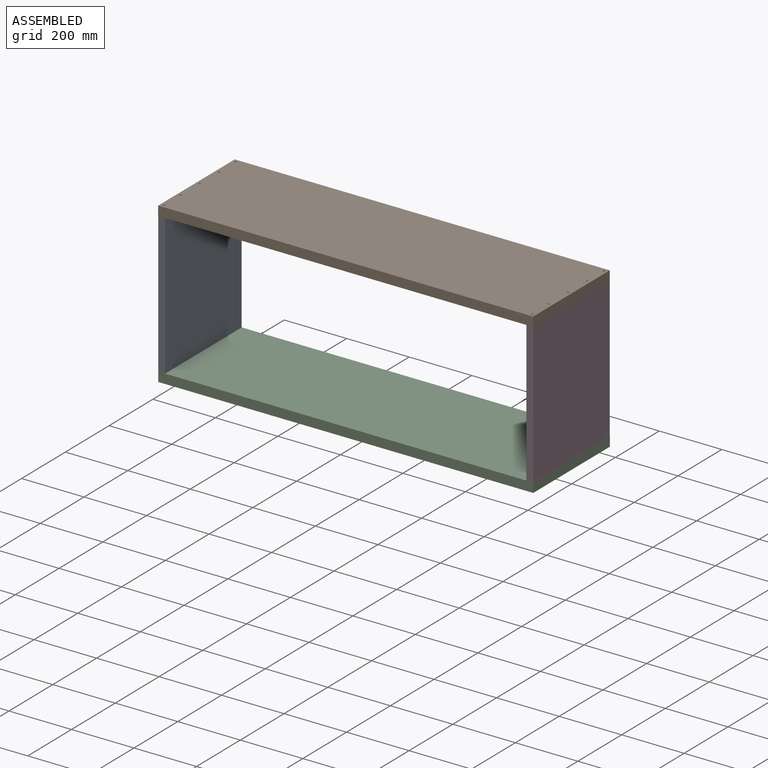
[diagram: assembled view]
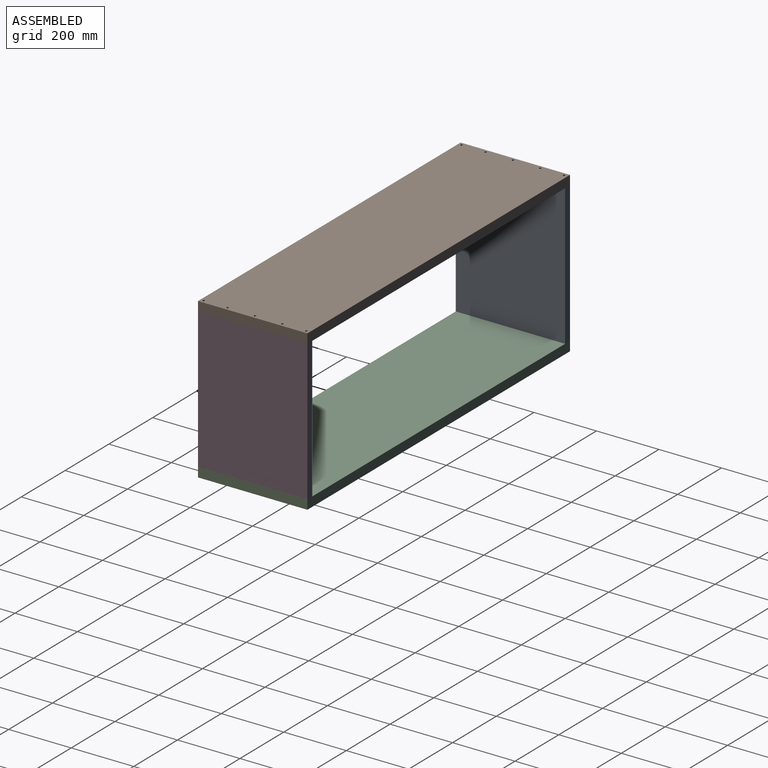
[diagram: assembled view, second angle]
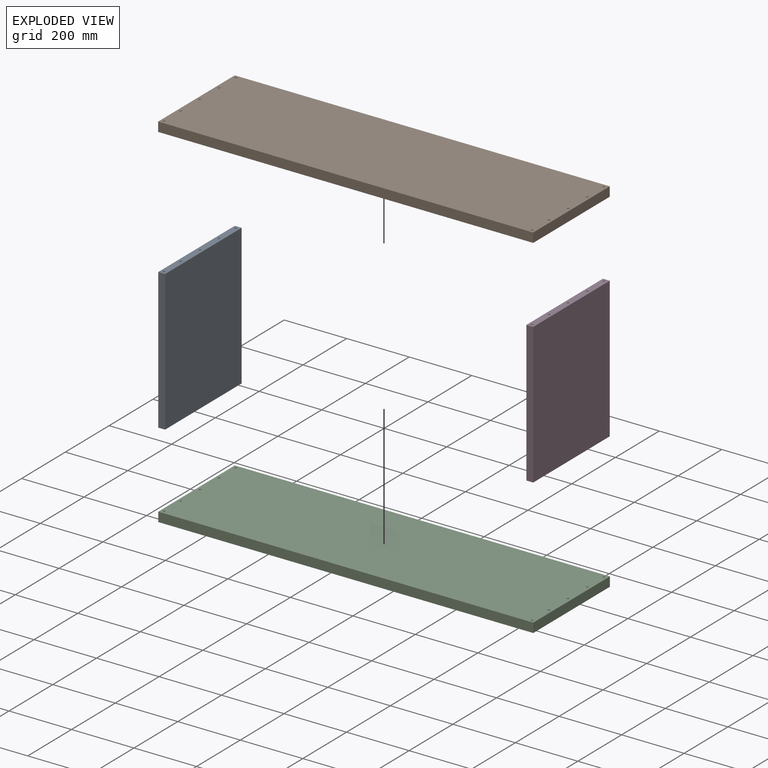
[diagram: exploded view]
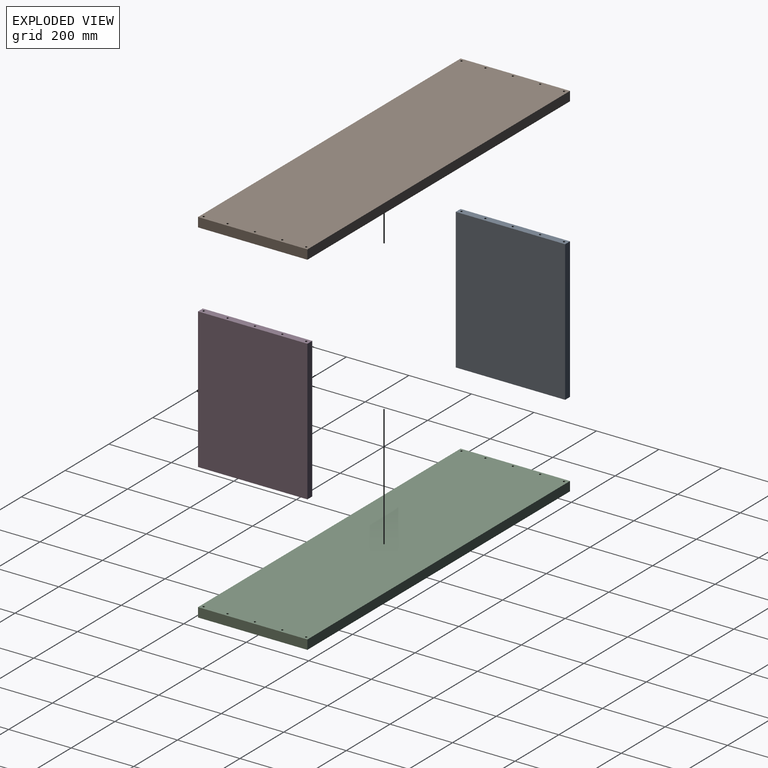
[diagram: exploded view, second angle]
ASSEMBLY  parts=4 mates=3
PART A: 26 faces, bbox 350x450x22 mm
  f0: plane 450x22mm, normal (-1,0,0), area 9900mm2, adj f1,f3,f4,f5
  f1: plane 450x350mm, normal (0,0,-1), area 157500mm2, adj f0,f2,f4,f5
  f2: plane 450x22mm, normal (1,0,0), area 9900mm2, adj f1,f3,f4,f5
  f3: plane 450x350mm, normal (0,0,1), area 157500mm2, adj f0,f2,f4,f5
  f4: plane 350x22mm, normal (0,-1,0), area 7507.6mm2, adj f0,f1,f2,f3,f16,f18,f20,f22
  f5: plane 350x22mm, normal (0,1,0), area 7507.6mm2, adj f0,f1,f2,f3,f6,f8,f10,f12
  f6: cylinder r=3.5mm len=30mm, axis (0,1,0), area 659.7mm2, adj f5,f7
  f7: cone r=0mm half-angle=59deg, axis (0,1,0), area 44.9mm2, adj f6
  f8: cylinder r=3.5mm len=30mm, axis (0,1,0), area 659.7mm2, adj f5,f9
  f9: cone r=0mm half-angle=59deg, axis (0,1,0), area 44.9mm2, adj f8
  f10: cylinder r=3.5mm len=30mm, axis (0,1,0), area 659.7mm2, adj f5,f11
  f11: cone r=0mm half-angle=59deg, axis (0,1,0), area 44.9mm2, adj f10
  f12: cylinder r=3.5mm len=30mm, axis (0,1,0), area 659.7mm2, adj f5,f13
  f13: cone r=0mm half-angle=59deg, axis (0,1,0), area 44.9mm2, adj f12
  f14: cylinder r=3.5mm len=30mm, axis (0,1,0), area 659.7mm2, adj f5,f15
  f15: cone r=0mm half-angle=59deg, axis (0,1,0), area 44.9mm2, adj f14
  f16: cylinder r=3.5mm len=30mm, axis (0,-1,0), area 659.7mm2, adj f4,f17
  f17: cone r=0mm half-angle=59deg, axis (0,-1,0), area 44.9mm2, adj f16
  f18: cylinder r=3.5mm len=30mm, axis (0,-1,0), area 659.7mm2, adj f4,f19
  f19: cone r=0mm half-angle=59deg, axis (0,-1,0), area 44.9mm2, adj f18
  f20: cylinder r=3.5mm len=30mm, axis (0,-1,0), area 659.7mm2, adj f4,f21
  f21: cone r=0mm half-angle=59deg, axis (0,-1,0), area 44.9mm2, adj f20
  f22: cylinder r=3.5mm len=30mm, axis (0,-1,0), area 659.7mm2, adj f4,f23
  f23: cone r=0mm half-angle=59deg, axis (0,-1,0), area 44.9mm2, adj f22
  f24: cylinder r=3.5mm len=30mm, axis (0,-1,0), area 659.7mm2, adj f4,f25
  f25: cone r=0mm half-angle=59deg, axis (0,-1,0), area 44.9mm2, adj f24
PART B: 16 faces, bbox 1200x350x30 mm
  f0: plane 350x30mm, normal (-1,0,0), area 10500mm2, adj f1,f3,f4,f5
  f1: plane 1200x350mm, normal (0,0,-1), area 419615.2mm2, adj f0,f2,f4,f5,f6,f7,f8,f9
  f2: plane 350x30mm, normal (1,0,0), area 10500mm2, adj f1,f3,f4,f5
  f3: plane 1200x350mm, normal (0,0,1), area 419615.2mm2, adj f0,f2,f4,f5,f6,f7,f8,f9
  f4: plane 1200x30mm, normal (0,-1,0), area 36000mm2, adj f0,f1,f2,f3
  f5: plane 1200x30mm, normal (0,1,0), area 36000mm2, adj f0,f1,f2,f3
  f6: cylinder r=3.5mm len=30mm, axis (0,0,1), area 659.7mm2, adj f1,f3
  f7: cylinder r=3.5mm len=30mm, axis (0,0,1), area 659.7mm2, adj f1,f3
  f8: cylinder r=3.5mm len=30mm, axis (0,0,1), area 659.7mm2, adj f1,f3
  f9: cylinder r=3.5mm len=30mm, axis (0,0,1), area 659.7mm2, adj f1,f3
  f10: cylinder r=3.5mm len=30mm, axis (0,0,1), area 659.7mm2, adj f1,f3
  f11: cylinder r=3.5mm len=30mm, axis (0,0,1), area 659.7mm2, adj f1,f3
  f12: cylinder r=3.5mm len=30mm, axis (0,0,1), area 659.7mm2, adj f1,f3
  f13: cylinder r=3.5mm len=30mm, axis (0,0,1), area 659.7mm2, adj f1,f3
  f14: cylinder r=3.5mm len=30mm, axis (0,0,1), area 659.7mm2, adj f1,f3
  f15: cylinder r=3.5mm len=30mm, axis (0,0,1), area 659.7mm2, adj f1,f3
PART C: same geometry as B
PART D: same geometry as A
PLACE A rot(axis=(-0.58,-0.58,0.58),120deg) t=(-75.4,420.49,149.11)mm
PLACE B t=(485.3,595.49,575.53)mm
PLACE C t=(485.48,595.49,95.53)mm
PLACE D rot(axis=(0.58,-0.58,-0.58),120deg) t=(1102.41,420.49,599.11)mm
MATE fastened D.f14 <-> B.f12  axis (0,0,1) through (1074.3,584.49,599.11)mm
MATE fastened A.f6 <-> C.f10  axis (0,0,-1) through (-103.52,584.49,149.11)mm
MATE fastened A.f24 <-> B.f10  axis (0,0,1) through (-103.7,584.49,599.11)mm
